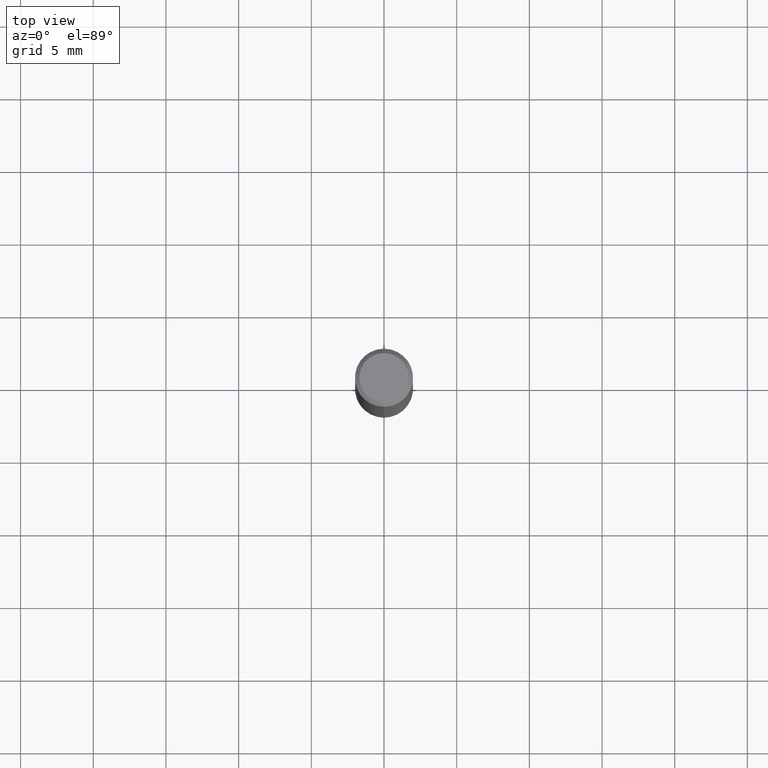
[diagram: clean part render]
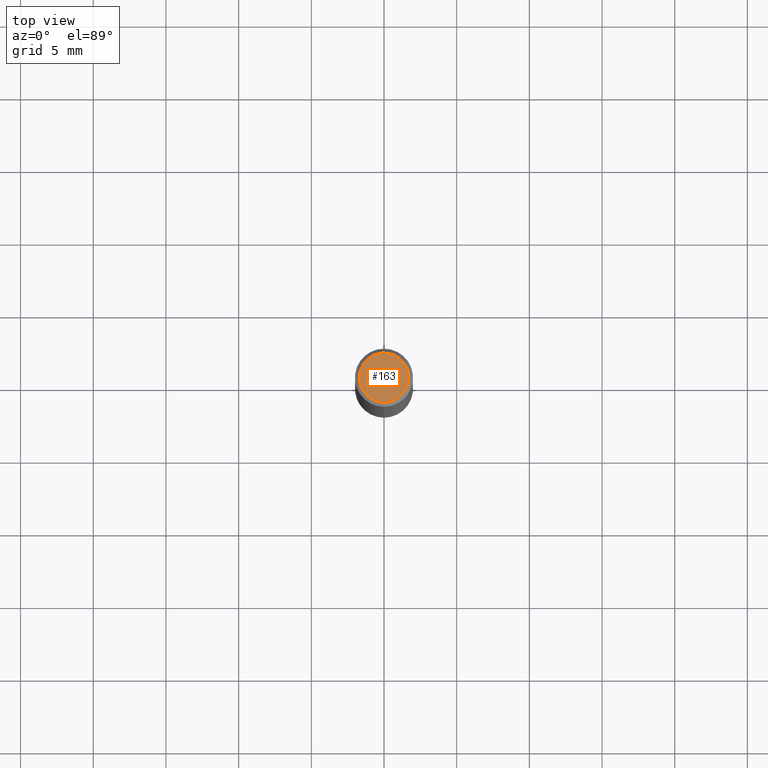
[diagram: same view with one face highlighted and labeled with its STEP entity id]
A machine part, top view. The second image highlights one B-rep face of the part: STEP entity #163.
In plain terms, the highlighted planar face has unit normal (-0, 0, 1).
Its self-contained STEP definition (entity closure, byte-faithful):
#163=ADVANCED_FACE('',(#402),#403,.T.);
#187=VERTEX_POINT('',#432);
#223=EDGE_CURVE('',#279,#187,#471,.T.);
#273=EDGE_CURVE('',#187,#279,#527,.T.);
#279=VERTEX_POINT('',#533);
#402=FACE_OUTER_BOUND('',#666,.T.);
#403=PLANE('',#667);
#432=CARTESIAN_POINT('',(0.0,1.7,0.00999999999999801));
#471=CIRCLE('',#754,1.7);
#527=CIRCLE('',#825,1.7);
#533=CARTESIAN_POINT('',(2.08183080149804E-016,-1.7,0.00999999999999801));
#666=EDGE_LOOP('',(#986,#987));
#667=AXIS2_PLACEMENT_3D('',#988,#989,#990);
#754=AXIS2_PLACEMENT_3D('',#1084,#1085,#1086);
#825=AXIS2_PLACEMENT_3D('',#1162,#1163,#1164);
#986=ORIENTED_EDGE('',*,*,#273,.F.);
#987=ORIENTED_EDGE('',*,*,#223,.F.);
#988=CARTESIAN_POINT('',(0.0,0.85,0.00999999999999801));
#989=DIRECTION('',(-0.0,0.0,1.0));
#990=DIRECTION('',(0.0,-1.0,0.0));
#1084=CARTESIAN_POINT('',(0.0,0.0,0.00999999999999801));
#1085=DIRECTION('',(0.0,0.0,-1.0));
#1086=DIRECTION('',(0.0,1.0,0.0));
#1162=CARTESIAN_POINT('',(0.0,0.0,0.00999999999999801));
#1163=DIRECTION('',(0.0,0.0,-1.0));
#1164=DIRECTION('',(0.0,1.0,0.0));